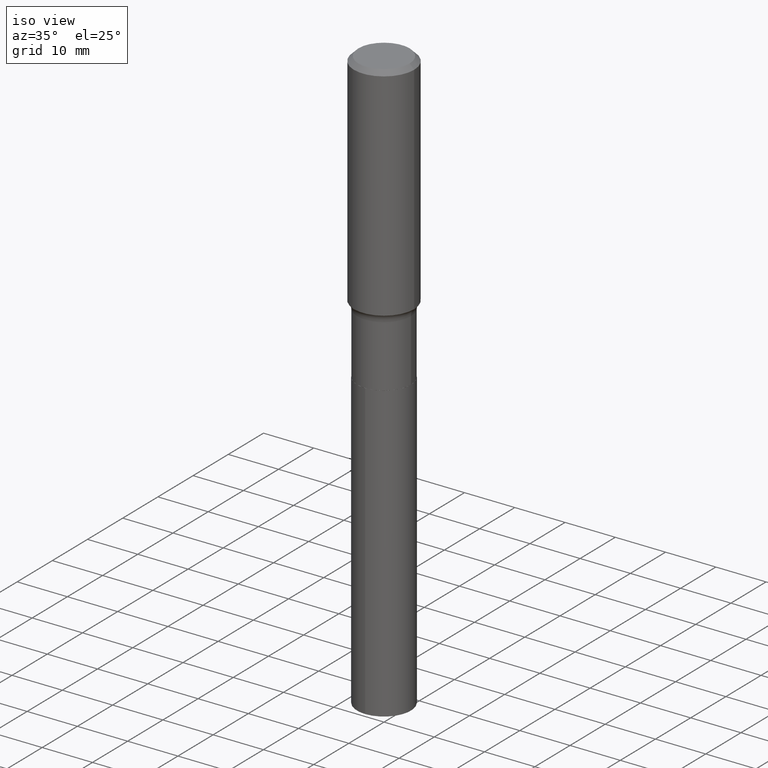
[diagram: clean part render]
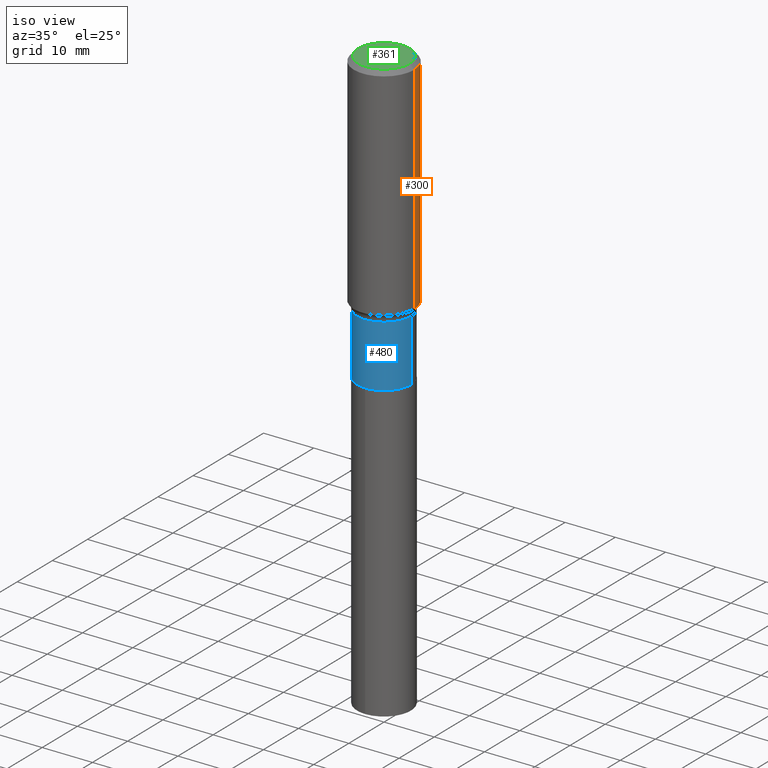
[diagram: same view with three faces highlighted in distinct colors, each labeled with its STEP entity id]
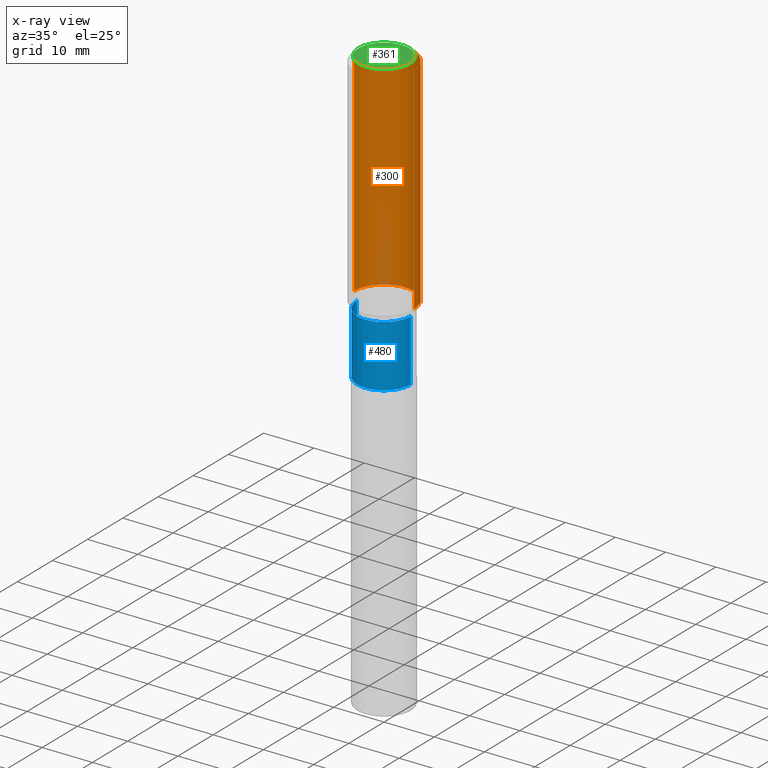
[diagram: x-ray of the same camera — body ghosted, the three highlighted faces saturated]
A machine part, iso view with three faces highlighted in distinct colors.
The next image is the same camera in x-ray (body ghosted, the three faces saturated) — at least one of them is partly hidden behind the body in this view.
Their STEP definitions:

[orange] entity #300 — the highlighted cylindrical surface (partial cylindrical patch) has radius 5.9995 mm, axis along (-0, 0, 1).
#17 = LINE ( 'NONE', #220, #214 ) ;
#24 = AXIS2_PLACEMENT_3D ( 'NONE', #375, #176, #331 ) ;
#30 = CYLINDRICAL_SURFACE ( 'NONE', #144, 0.2362000000000001043 ) ;
#49 = AXIS2_PLACEMENT_3D ( 'NONE', #381, #426, #100 ) ;
#64 = CARTESIAN_POINT ( 'NONE',  ( 0.000000000000000000, 0.000000000000000000, 0.000000000000000000 ) ) ;
#100 = DIRECTION ( 'NONE',  ( 1.000000000000000000, -6.982962677686266711E-15, 0.000000000000000000 ) ) ;
#139 = DIRECTION ( 'NONE',  ( -2.445468806185136597E-29, 3.491481338843145583E-15, 1.000000000000000000 ) ) ;
#142 = CARTESIAN_POINT ( 'NONE',  ( 0.2362000000000002153, -7.687780619051827397E-15, -1.729467881556277398 ) ) ;
#144 = AXIS2_PLACEMENT_3D ( 'NONE', #64, #139, #376 ) ;
#145 = VERTEX_POINT ( 'NONE', #319 ) ;
#151 = ORIENTED_EDGE ( 'NONE', *, *, #450, .F. ) ;
#155 = EDGE_LOOP ( 'NONE', ( #329, #280, #371, #151 ) ) ;
#168 = CIRCLE ( 'NONE', #49, 0.2362000000000002153 ) ;
#176 = DIRECTION ( 'NONE',  ( -2.445468806185136597E-29, 3.491481338843145583E-15, 1.000000000000000000 ) ) ;
#213 = CARTESIAN_POINT ( 'NONE',  ( -0.2362000000000002153, -4.360102892716971322E-15, -1.729467881556277398 ) ) ;
#214 = VECTOR ( 'NONE', #396, 39.37007874015748143 ) ;
#220 = CARTESIAN_POINT ( 'NONE',  ( -0.2362000000000001043, 1.678301941865357380E-15, -1.161852468318209317E-29 ) ) ;
#233 = CARTESIAN_POINT ( 'NONE',  ( 0.2362000000000001043, -1.649375784469496920E-15, 1.151752954443000508E-29 ) ) ;
#248 = EDGE_CURVE ( 'NONE', #291, #305, #168, .T. ) ;
#255 = CARTESIAN_POINT ( 'NONE',  ( -0.2361999999999999933, -1.402752067343413662E-15, -0.03543000000000021826 ) ) ;
#280 = ORIENTED_EDGE ( 'NONE', *, *, #398, .T. ) ;
#291 = VERTEX_POINT ( 'NONE', #142 ) ;
#300 = ADVANCED_FACE ( 'NONE', ( #301 ), #30, .T. ) ;
#301 = FACE_OUTER_BOUND ( 'NONE', #155, .T. ) ;
#305 = VERTEX_POINT ( 'NONE', #213 ) ;
#319 = CARTESIAN_POINT ( 'NONE',  ( 0.2361999999999999933, -1.773078968304709514E-15, -0.03543000000000021826 ) ) ;
#320 = VERTEX_POINT ( 'NONE', #255 ) ;
#329 = ORIENTED_EDGE ( 'NONE', *, *, #248, .T. ) ;
#331 = DIRECTION ( 'NONE',  ( 1.000000000000000000, -6.982962677686266711E-15, 0.000000000000000000 ) ) ;
#359 = LINE ( 'NONE', #233, #425 ) ;
#371 = ORIENTED_EDGE ( 'NONE', *, *, #397, .F. ) ;
#375 = CARTESIAN_POINT ( 'NONE',  ( 8.664295980313993487E-31, -1.237031838352134079E-16, -0.03543000000000021826 ) ) ;
#376 = DIRECTION ( 'NONE',  ( 1.000000000000000000, -6.982962677686266711E-15, 4.876176775795935793E-29 ) ) ;
#381 = CARTESIAN_POINT ( 'NONE',  ( 4.229359755644966557E-29, -6.038404834582329294E-15, -1.729467881556277398 ) ) ;
#396 = DIRECTION ( 'NONE',  ( -2.445468806185136877E-29, 3.491481338843145188E-15, 1.000000000000000000 ) ) ;
#397 = EDGE_CURVE ( 'NONE', #145, #320, #415, .T. ) ;
#398 = EDGE_CURVE ( 'NONE', #305, #320, #17, .T. ) ;
#415 = CIRCLE ( 'NONE', #24, 0.2361999999999999933 ) ;
#424 = DIRECTION ( 'NONE',  ( -2.445468806185136877E-29, 3.491481338843145188E-15, 1.000000000000000000 ) ) ;
#425 = VECTOR ( 'NONE', #424, 39.37007874015748143 ) ;
#426 = DIRECTION ( 'NONE',  ( -2.445468806185136597E-29, 3.491481338843145583E-15, 1.000000000000000000 ) ) ;
#450 = EDGE_CURVE ( 'NONE', #291, #145, #359, .T. ) ;

[blue] entity #480 — the highlighted cylindrical surface (edge-blend (fillet) strip) has radius 5.3505 mm, axis along (-0, 0, 1).
#4 = AXIS2_PLACEMENT_3D ( 'NONE', #156, #394, #347 ) ;
#6 = ORIENTED_EDGE ( 'NONE', *, *, #278, .F. ) ;
#14 = VERTEX_POINT ( 'NONE', #455 ) ;
#18 = CARTESIAN_POINT ( 'NONE',  ( 5.554148752607681363E-29, -7.929852416780550200E-15, -2.271199999999999442 ) ) ;
#32 = DIRECTION ( 'NONE',  ( -2.445468806185136877E-29, 3.491481338843145188E-15, 1.000000000000000000 ) ) ;
#33 = CARTESIAN_POINT ( 'NONE',  ( 0.2106500000000000039, -9.400813504835161960E-15, -2.271199999999999442 ) ) ;
#36 = ORIENTED_EDGE ( 'NONE', *, *, #434, .T. ) ;
#65 = DIRECTION ( 'NONE',  ( -2.445468806185136597E-29, 3.491481338843145583E-15, 1.000000000000000000 ) ) ;
#74 = FACE_OUTER_BOUND ( 'NONE', #440, .T. ) ;
#76 = VERTEX_POINT ( 'NONE', #461 ) ;
#77 = DIRECTION ( 'NONE',  ( -2.445468806185136877E-29, 3.491481338843145188E-15, 1.000000000000000000 ) ) ;
#102 = LINE ( 'NONE', #178, #373 ) ;
#150 = DIRECTION ( 'NONE',  ( 1.000000000000000000, -6.982962677686267499E-15, 0.000000000000000000 ) ) ;
#156 = CARTESIAN_POINT ( 'NONE',  ( 0.000000000000000000, 0.000000000000000000, 0.000000000000000000 ) ) ;
#178 = CARTESIAN_POINT ( 'NONE',  ( -0.2106499999999999762, 1.496758272878650872E-15, -1.036173676762195916E-29 ) ) ;
#196 = VECTOR ( 'NONE', #77, 39.37007874015748143 ) ;
#199 = AXIS2_PLACEMENT_3D ( 'NONE', #18, #65, #335 ) ;
#212 = VERTEX_POINT ( 'NONE', #325 ) ;
#238 = EDGE_CURVE ( 'NONE', #76, #372, #420, .T. ) ;
#274 = AXIS2_PLACEMENT_3D ( 'NONE', #481, #442, #150 ) ;
#278 = EDGE_CURVE ( 'NONE', #14, #212, #368, .T. ) ;
#306 = ORIENTED_EDGE ( 'NONE', *, *, #238, .T. ) ;
#317 = EDGE_CURVE ( 'NONE', #76, #14, #102, .T. ) ;
#325 = CARTESIAN_POINT ( 'NONE',  ( 0.2106499999999999484, -7.710936536835081819E-15, -1.787199999999999900 ) ) ;
#335 = DIRECTION ( 'NONE',  ( 1.000000000000000000, -6.982962677686265922E-15, 0.000000000000000000 ) ) ;
#338 = ORIENTED_EDGE ( 'NONE', *, *, #317, .F. ) ;
#347 = DIRECTION ( 'NONE',  ( 1.000000000000000000, -6.982962677686266711E-15, 4.876176775795935793E-29 ) ) ;
#349 = CYLINDRICAL_SURFACE ( 'NONE', #4, 0.2106499999999999762 ) ;
#368 = CIRCLE ( 'NONE', #274, 0.2106499999999999484 ) ;
#372 = VERTEX_POINT ( 'NONE', #33 ) ;
#373 = VECTOR ( 'NONE', #32, 39.37007874015748143 ) ;
#392 = LINE ( 'NONE', #423, #196 ) ;
#394 = DIRECTION ( 'NONE',  ( -2.445468806185136597E-29, 3.491481338843145583E-15, 1.000000000000000000 ) ) ;
#420 = CIRCLE ( 'NONE', #199, 0.2106500000000000039 ) ;
#423 = CARTESIAN_POINT ( 'NONE',  ( 0.2106499999999999762, -1.470961088054611958E-15, 1.027166637821413806E-29 ) ) ;
#434 = EDGE_CURVE ( 'NONE', #372, #212, #392, .T. ) ;
#440 = EDGE_LOOP ( 'NONE', ( #338, #306, #36, #6 ) ) ;
#442 = DIRECTION ( 'NONE',  ( -2.445468806185136597E-29, 3.491481338843145583E-15, 1.000000000000000000 ) ) ;
#455 = CARTESIAN_POINT ( 'NONE',  ( -0.2106499999999999484, -5.588155659901859060E-15, -1.787199999999999900 ) ) ;
#461 = CARTESIAN_POINT ( 'NONE',  ( -0.2106500000000000039, -5.588155659901859060E-15, -2.271199999999999442 ) ) ;
#480 = ADVANCED_FACE ( 'NONE', ( #74 ), #349, .T. ) ;
#481 = CARTESIAN_POINT ( 'NONE',  ( 4.370541850414076546E-29, -6.239975448780469270E-15, -1.787199999999999900 ) ) ;

[green] entity #361 — the highlighted planar face has unit normal (0, -0, -1).
#28 = AXIS2_PLACEMENT_3D ( 'NONE', #269, #110, #44 ) ;
#44 = DIRECTION ( 'NONE',  ( 1.000000000000000000, -6.982962677686266711E-15, 4.876140833081945105E-29 ) ) ;
#61 = DIRECTION ( 'NONE',  ( 2.438088387897960049E-29, -3.491481338843145188E-15, -1.000000000000000000 ) ) ;
#68 = CIRCLE ( 'NONE', #28, 0.2007700000000000040 ) ;
#69 = PLANE ( 'NONE',  #152 ) ;
#89 = EDGE_CURVE ( 'NONE', #391, #194, #68, .T. ) ;
#99 = EDGE_LOOP ( 'NONE', ( #453, #111 ) ) ;
#104 = CARTESIAN_POINT ( 'NONE',  ( -5.008488096090115757E-47, 7.150793614331959538E-33, 2.048068690724057264E-18 ) ) ;
#110 = DIRECTION ( 'NONE',  ( -2.445468806185136597E-29, 3.491481338843145583E-15, 1.000000000000000000 ) ) ;
#111 = ORIENTED_EDGE ( 'NONE', *, *, #158, .T. ) ;
#113 = CARTESIAN_POINT ( 'NONE',  ( 0.2007700000000000040, -1.560767496960719672E-15, 4.096137381458473721E-18 ) ) ;
#152 = AXIS2_PLACEMENT_3D ( 'NONE', #104, #61, #377 ) ;
#158 = EDGE_CURVE ( 'NONE', #194, #391, #275, .T. ) ;
#194 = VERTEX_POINT ( 'NONE', #113 ) ;
#211 = FACE_OUTER_BOUND ( 'NONE', #99, .T. ) ;
#269 = CARTESIAN_POINT ( 'NONE',  ( -1.001697619218023151E-46, 1.430158722866391908E-32, 4.096137381448114529E-18 ) ) ;
#275 = CIRCLE ( 'NONE', #482, 0.2007700000000000040 ) ;
#282 = DIRECTION ( 'NONE',  ( -2.445468806185136597E-29, 3.491481338843145583E-15, 1.000000000000000000 ) ) ;
#361 = ADVANCED_FACE ( 'NONE', ( #211 ), #69, .F. ) ;
#367 = DIRECTION ( 'NONE',  ( 1.000000000000000000, -6.982962677686266711E-15, 4.876140833081945105E-29 ) ) ;
#377 = DIRECTION ( 'NONE',  ( -1.000000000000000000, 6.982962677686265922E-15, -4.876176775795935793E-29 ) ) ;
#391 = VERTEX_POINT ( 'NONE', #417 ) ;
#417 = CARTESIAN_POINT ( 'NONE',  ( -0.2007700000000000040, 1.463821008716677338E-15, 4.096137381438094301E-18 ) ) ;
#453 = ORIENTED_EDGE ( 'NONE', *, *, #89, .T. ) ;
#472 = CARTESIAN_POINT ( 'NONE',  ( -1.001697619218023151E-46, 1.430158722866391908E-32, 4.096137381448114529E-18 ) ) ;
#482 = AXIS2_PLACEMENT_3D ( 'NONE', #472, #282, #367 ) ;